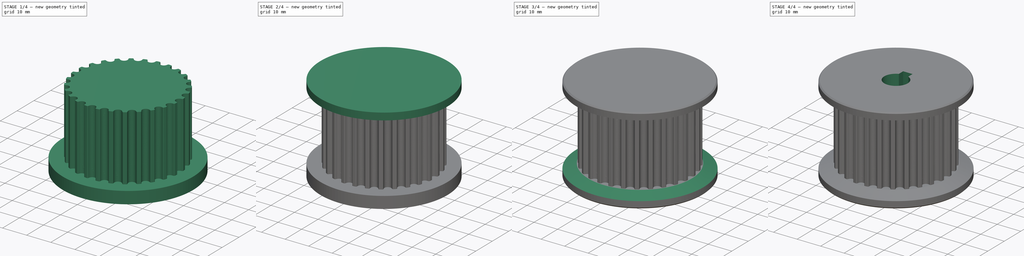
[diagram: build sequence overview — one tinted view per stage of 4, left to right]
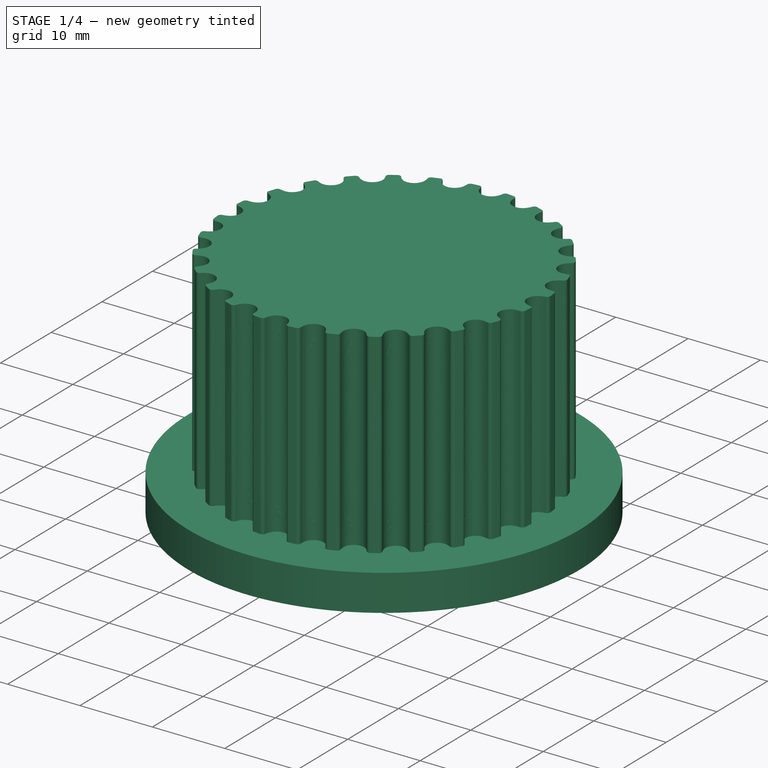
[diagram: stage 1 of 4 — iso view after this stage's code; geometry added in this stage tinted green]
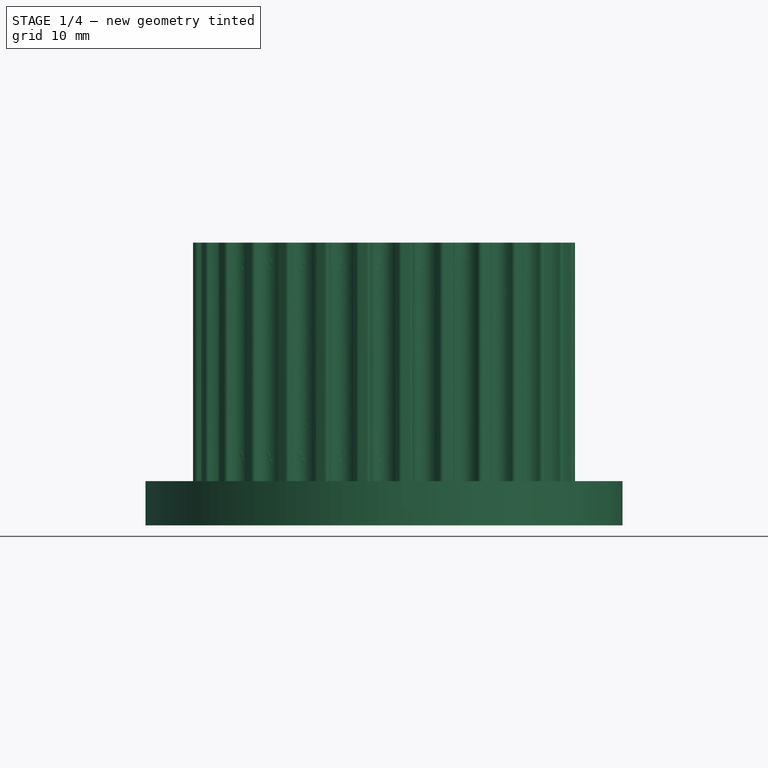
[diagram: stage 1 of 4 — front view after this stage's code; geometry added in this stage tinted green]
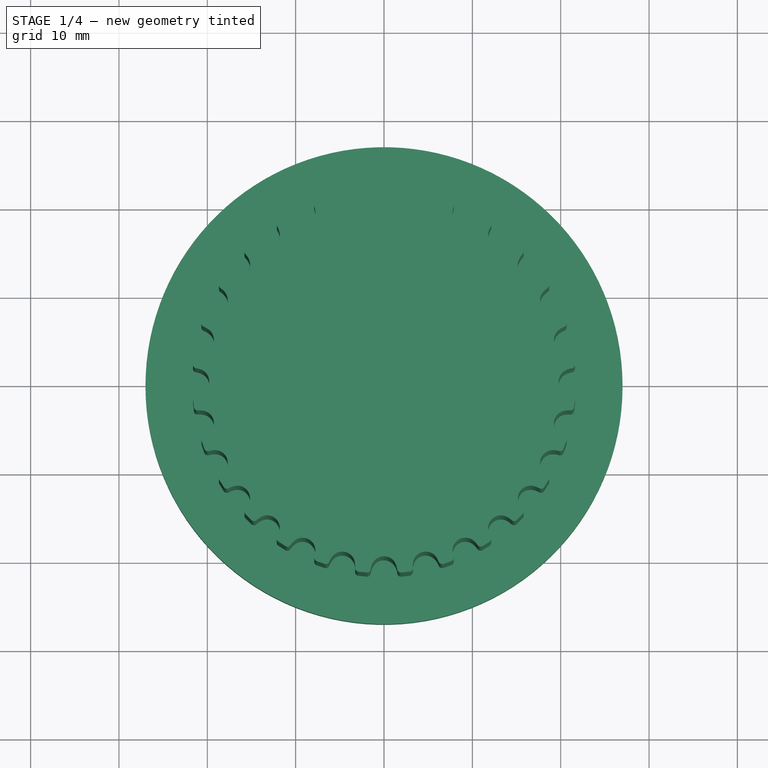
[diagram: stage 1 of 4 — top view after this stage's code; geometry added in this stage tinted green]
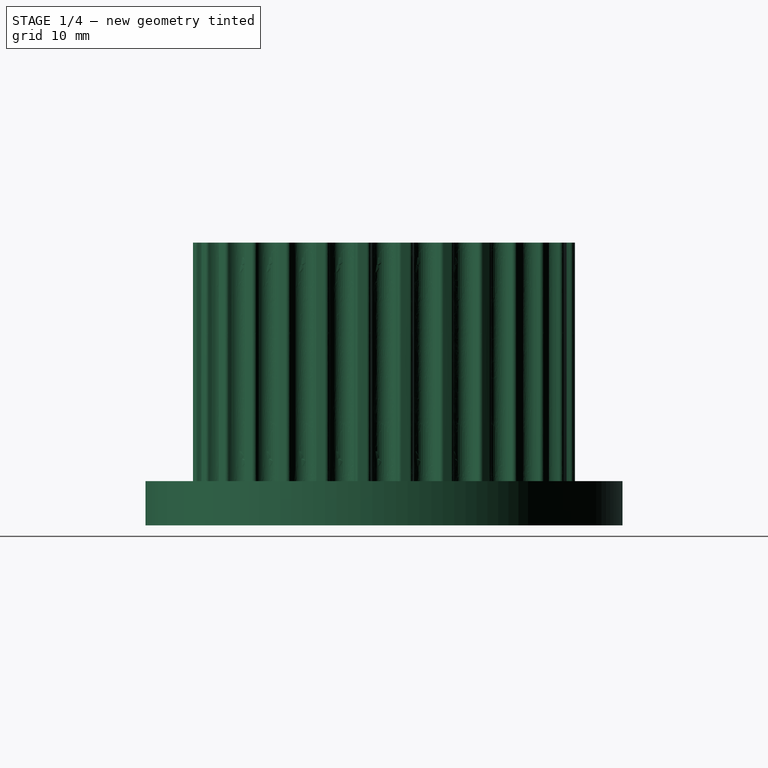
[diagram: stage 1 of 4 — right view after this stage's code; geometry added in this stage tinted green]
FCSTD DOCUMENT  (FreeCAD 0.20R29177 +426 (Git))
Label: Pitch_Motor_Pulley
License: All rights reserved
LicenseURL: http://en.wikipedia.org/wiki/All_rights_reserved
objects: Sketcher::SketchObject×4, PartDesign::Chamfer×4, PartDesign::Pad×2, PartDesign::Pocket×2, PartDesign::FeaturePython×1, PartDesign::Body×1, App::Part×1
note: 22 computed .brp shape members not serialized (recipe doc carries the construction recipe); baked Part::Feature solids carry a one-line shape summary decoded from their .brp

FEATURE [Sketcher::SketchObject] Sketch120
  AttachmentOffset = pos=(0,0,32) rot=(0,0,1;0rad)
  FullyConstrained = true
  MapMode = 5
  Placement = pos=(0,0,32) rot=(0,0,1;0rad)
  Support = -> [XY_Plane041]
  sketch-geometry (4):
    g0: ArcOfCircle CenterX=0 CenterY=0 CenterZ=0 NormalX=0 NormalY=0 NormalZ=1 AngleXU=0 Radius=5 StartAngle=1.98231 EndAngle=7.44246
    g1: LineSegment StartX=-2 StartY=7.2 StartZ=0 EndX=2 EndY=7.2 EndZ=0
    g2: LineSegment StartX=2 StartY=7.2 StartZ=0 EndX=2 EndY=4.58258 EndZ=0
    g3: LineSegment StartX=-2 StartY=4.58258 StartZ=0 EndX=-2 EndY=7.2 EndZ=0
  constraints (11):
    c: Coincident(g0,g-1)
    c: Diameter(g0) = 10
    c: Coincident(g1,g2)
    c: Coincident(g3,g1)
    c: Vertical(g2)
    c: Vertical(g3)
    c: Distance(g1) = 4
    c: Coincident(g2,g0)
    c: Coincident(g3,g0)
    c: Symmetric(g1,g1,g-2)
    c: DistanceY(g0,g1) = 7.2
FEATURE [Sketcher::SketchObject] Sketch121
  AttachmentOffset = pos=(0,0,-5) rot=(0,0,1;0rad)
  FullyConstrained = true
  MapMode = 5
  Placement = pos=(0,0,-5) rot=(0,0,1;0rad)
  Support = -> [XY_Plane041]
  sketch-geometry (1):
    g0: Circle CenterX=0 CenterY=0 CenterZ=0 NormalX=0 NormalY=0 NormalZ=1 AngleXU=0 Radius=2.05
  constraints (2):
    c: Coincident(g0,g-1)
    c: Diameter(g0) = 4.1
FEATURE [PartDesign::FeaturePython] TimingGear006  # WARN: FeaturePython — macro-defined, semantics opaque (R4)
  AttacherType = Attacher::AttachEngine3D
  h = 1.93
  height = 27
  offset = 1.03
  pitch = 5
  r0 = 1.44
  r1 = 2.57
  rs = 0.416
  teeth = 28
  type = 2
  u = 0.5715
  version = 0.0.4
FEATURE [Sketcher::SketchObject] Sketch
  FullyConstrained = true
  MapMode = 5
  Support = -> [XY_Plane041]
  sketch-geometry (1):
    g0: Circle CenterX=0 CenterY=0 CenterZ=0 NormalX=0 NormalY=0 NormalZ=1 AngleXU=0 Radius=27
  constraints (2):
    c: Coincident(g0,g-1)
    c: Diameter(g0) = 54
FEATURE [Sketcher::SketchObject] Sketch122
  AttachmentOffset = pos=(0,0,27) rot=(0,0,1;0rad)
  FullyConstrained = true
  MapMode = 5
  Placement = pos=(0,0,27) rot=(0,0,1;0rad)
  Support = -> [XY_Plane041]
  sketch-geometry (1):
    g0: Circle CenterX=0 CenterY=0 CenterZ=0 NormalX=0 NormalY=0 NormalZ=1 AngleXU=0 Radius=27
  constraints (2):
    c: Coincident(g0,g-1)
    c: Diameter(g0) = 54
FEATURE [PartDesign::Pad] Pad
  BaseFeature = -> TimingGear006
  Direction = (0,0,1)
  Length = 5
  Length2 = 10
  Profile = -> Sketch
  ReferenceAxis = -> Sketch [N_Axis]
  Reversed = true
  Type = 0
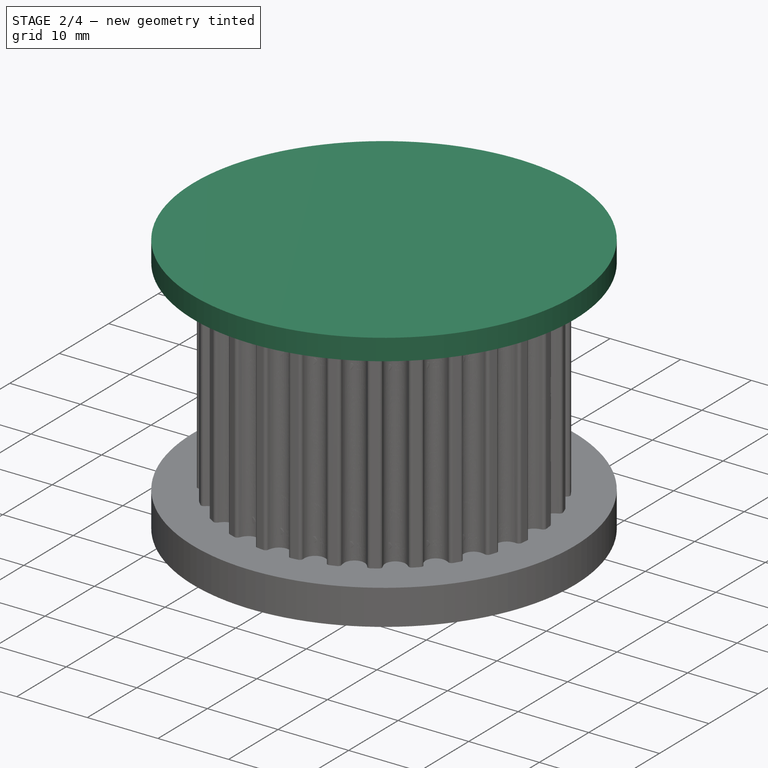
[diagram: stage 2 of 4 — iso view after this stage's code; geometry added in this stage tinted green]
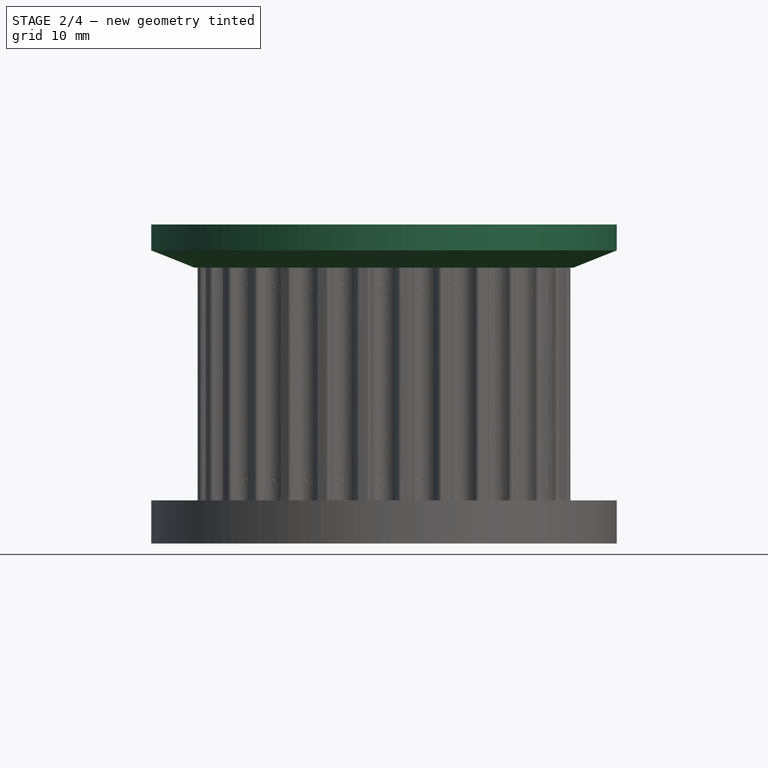
[diagram: stage 2 of 4 — front view after this stage's code; geometry added in this stage tinted green]
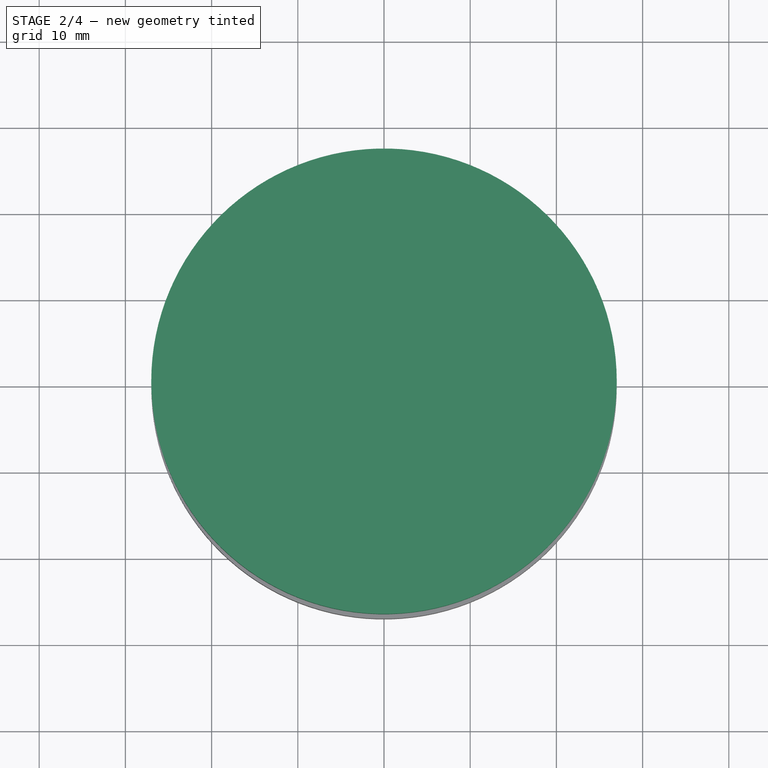
[diagram: stage 2 of 4 — top view after this stage's code; geometry added in this stage tinted green]
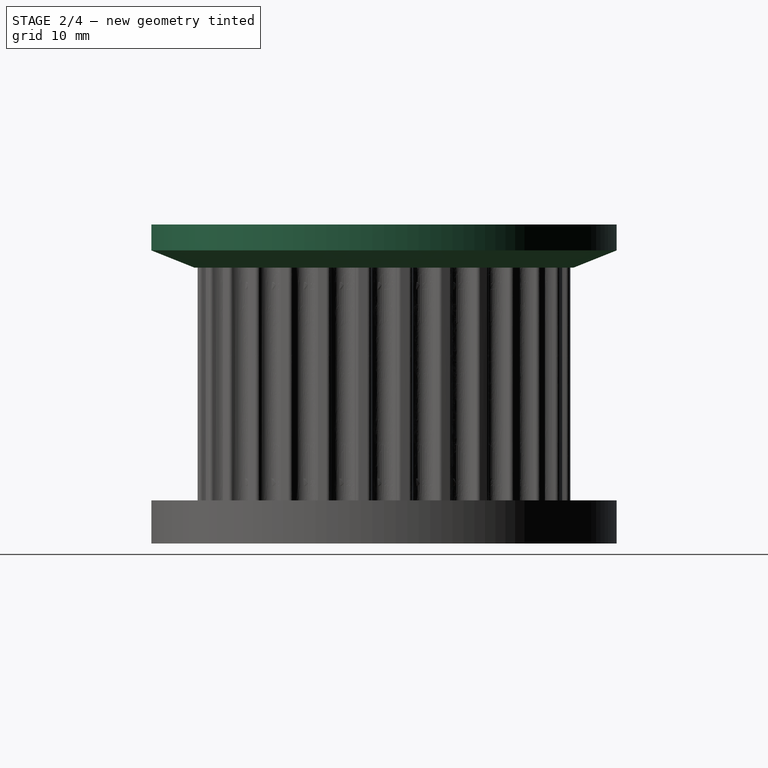
[diagram: stage 2 of 4 — right view after this stage's code; geometry added in this stage tinted green]
FEATURE [PartDesign::Pad] Pad001
  BaseFeature = -> Pad
  Direction = (0,0,1)
  Length = 5
  Length2 = 10
  Profile = -> Sketch122
  ReferenceAxis = -> Sketch122 [N_Axis]
  Type = 0
FEATURE [PartDesign::Chamfer] Chamfer
  Angle = 45
  Base = -> Pad001 [Edge2]
  BaseFeature = -> Pad001
  ChamferType = 1
  FlipDirection = false
  Size = 2
  Size2 = 5
  SupportTransform = false
  UseAllEdges = false
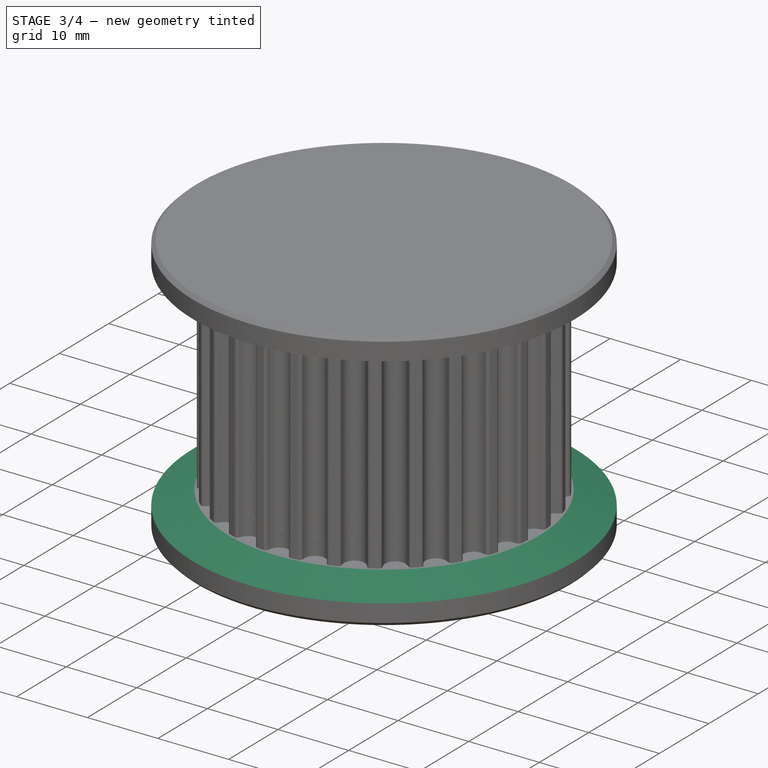
[diagram: stage 3 of 4 — iso view after this stage's code; geometry added in this stage tinted green]
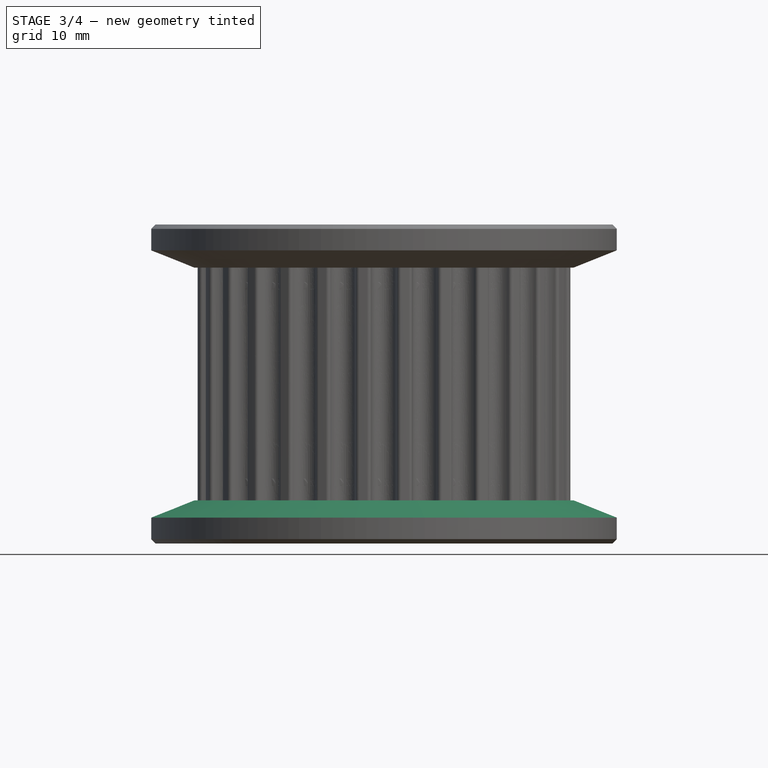
[diagram: stage 3 of 4 — front view after this stage's code; geometry added in this stage tinted green]
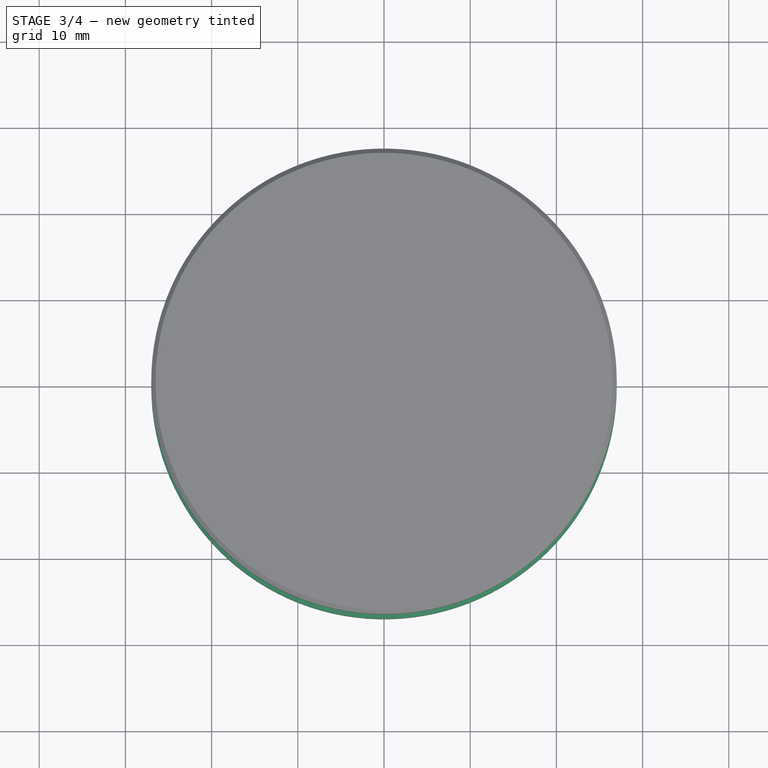
[diagram: stage 3 of 4 — top view after this stage's code; geometry added in this stage tinted green]
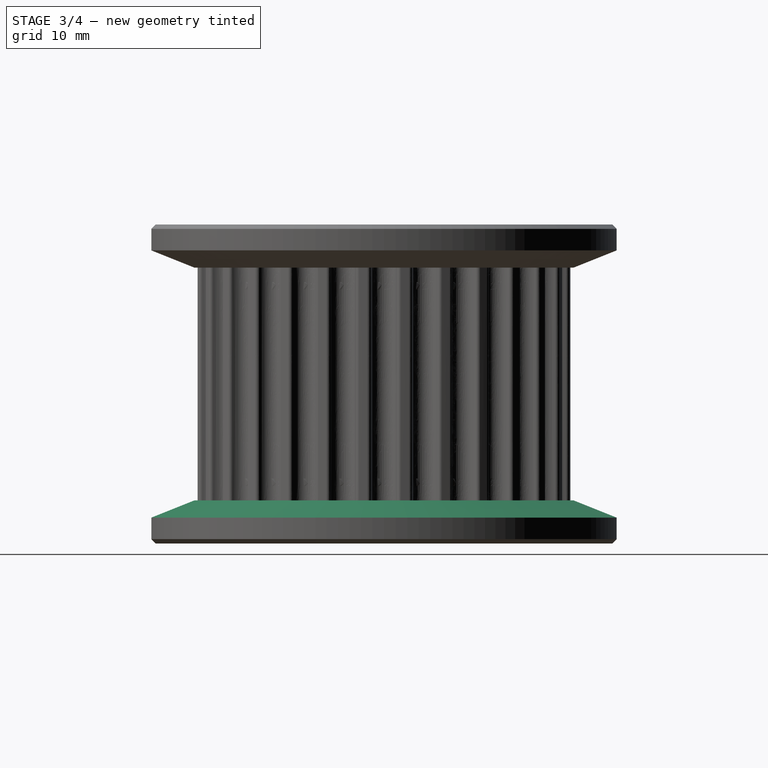
[diagram: stage 3 of 4 — right view after this stage's code; geometry added in this stage tinted green]
FEATURE [PartDesign::Chamfer] Chamfer001
  Angle = 45
  Base = -> Chamfer [Edge510]
  BaseFeature = -> Chamfer
  ChamferType = 1
  FlipDirection = false
  Size = 5
  Size2 = 2
  SupportTransform = false
  UseAllEdges = false
FEATURE [PartDesign::Chamfer] Chamfer002
  Angle = 45
  Base = -> Chamfer001 [Edge514]
  BaseFeature = -> Chamfer001
  ChamferType = 0
  FlipDirection = false
  Size = 0.5
  Size2 = 1
  SupportTransform = false
  UseAllEdges = false
FEATURE [PartDesign::Chamfer] Chamfer003
  Angle = 45
  Base = -> Chamfer002 [Edge516]
  BaseFeature = -> Chamfer002
  ChamferType = 0
  FlipDirection = false
  Size = 0.5
  Size2 = 1
  SupportTransform = false
  UseAllEdges = false
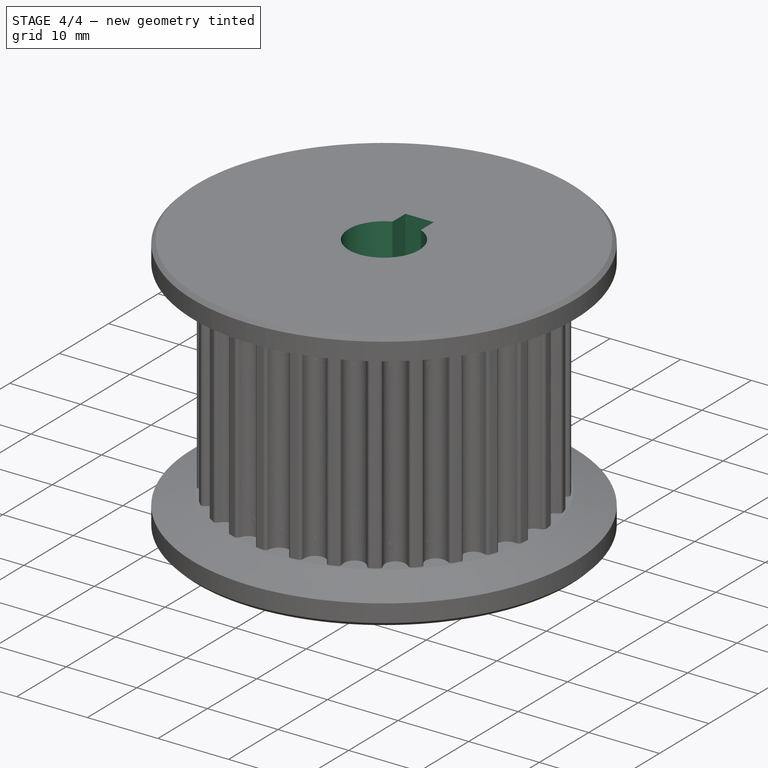
[diagram: stage 4 of 4 — iso view after this stage's code; geometry added in this stage tinted green]
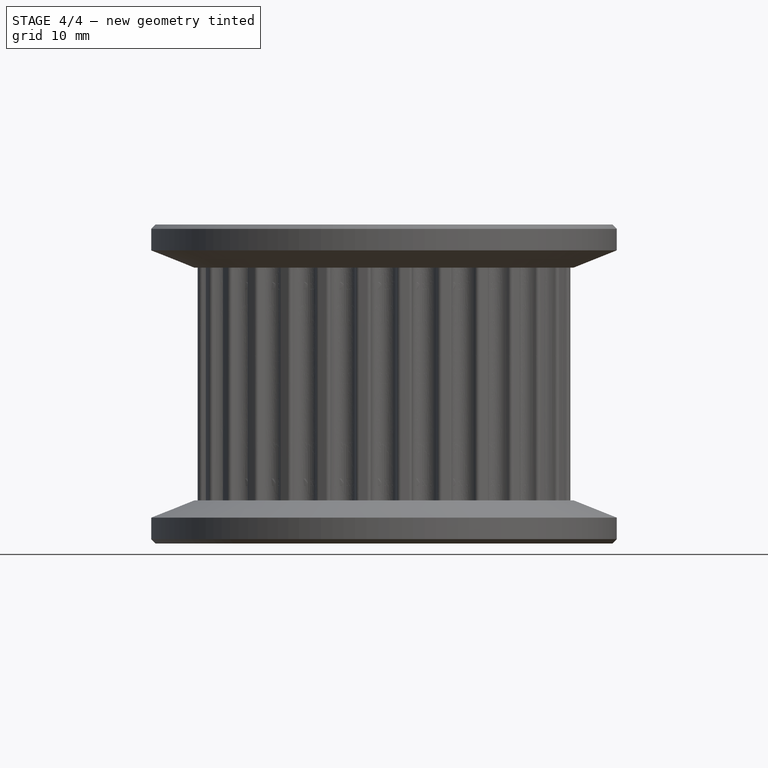
[diagram: stage 4 of 4 — front view after this stage's code; geometry added in this stage tinted green]
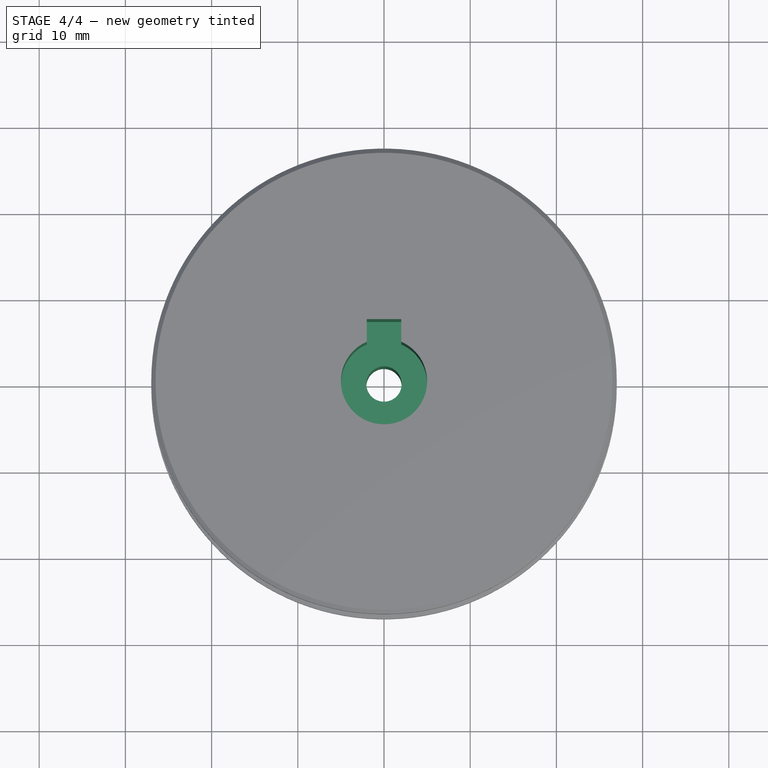
[diagram: stage 4 of 4 — top view after this stage's code; geometry added in this stage tinted green]
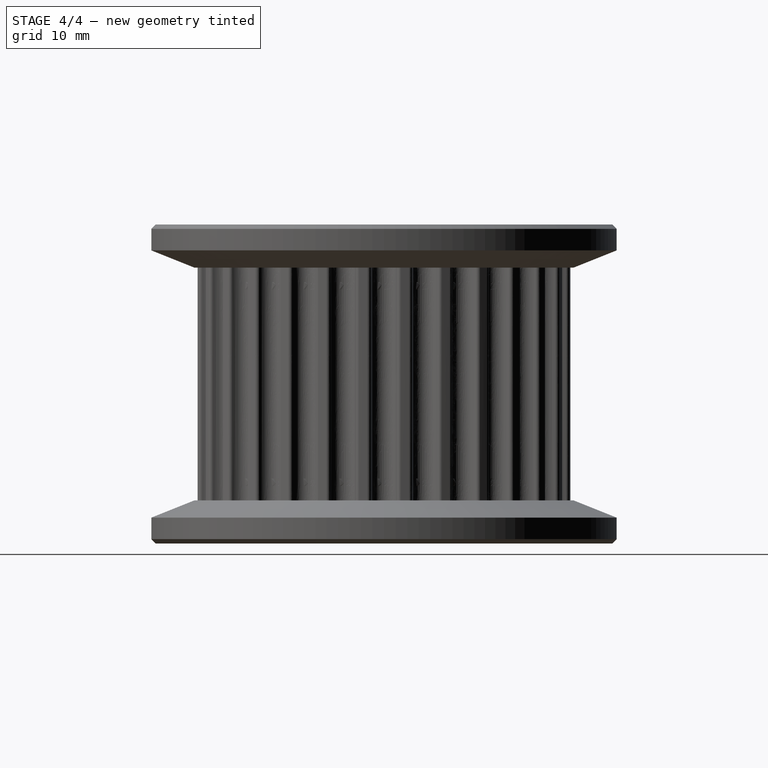
[diagram: stage 4 of 4 — right view after this stage's code; geometry added in this stage tinted green]
FEATURE [PartDesign::Pocket] Pocket043
  BaseFeature = -> Chamfer003
  Direction = (0,0,-1)
  Length = 18.5
  Length2 = 5
  Profile = -> Sketch120
  ReferenceAxis = -> Sketch120 [N_Axis]
  Type = 0
FEATURE [PartDesign::Pocket] Pocket044
  BaseFeature = -> Pocket043
  Direction = (0,0,-1)
  Length = 0
  Length2 = 5
  Profile = -> Sketch121
  ReferenceAxis = -> Sketch121 [N_Axis]
  Reversed = true
  Type = 1
FEATURE [PartDesign::Body] Body025  label="Pitch_Motor_Pulley"
  Group = -> [TimingGear006,Sketch120,Sketch121,Sketch,Sketch122,Pad,Pad001,Chamfer,Chamfer001,Chamfer002,Chamfer003,Pocket043,Pocket044]
  Origin = -> Origin041
  Placement = pos=(-75,-3,-5) rot=(1,0,0;1.5708rad)
  Tip = -> Pocket044
FEATURE [App::Part] Part
  Group = -> [Body025]
  Origin = -> Origin
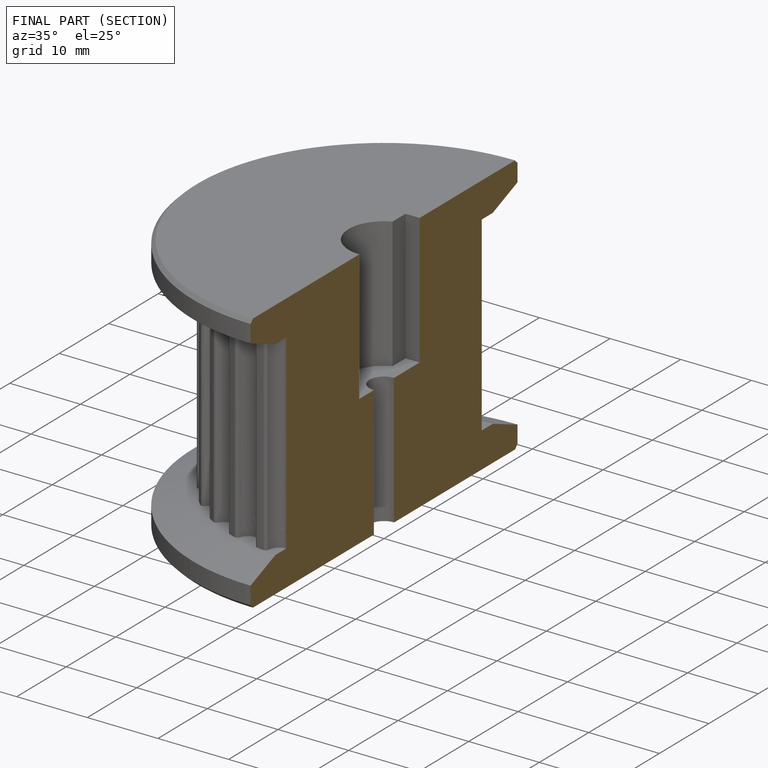
[diagram: finished part — half-section view (interior)]
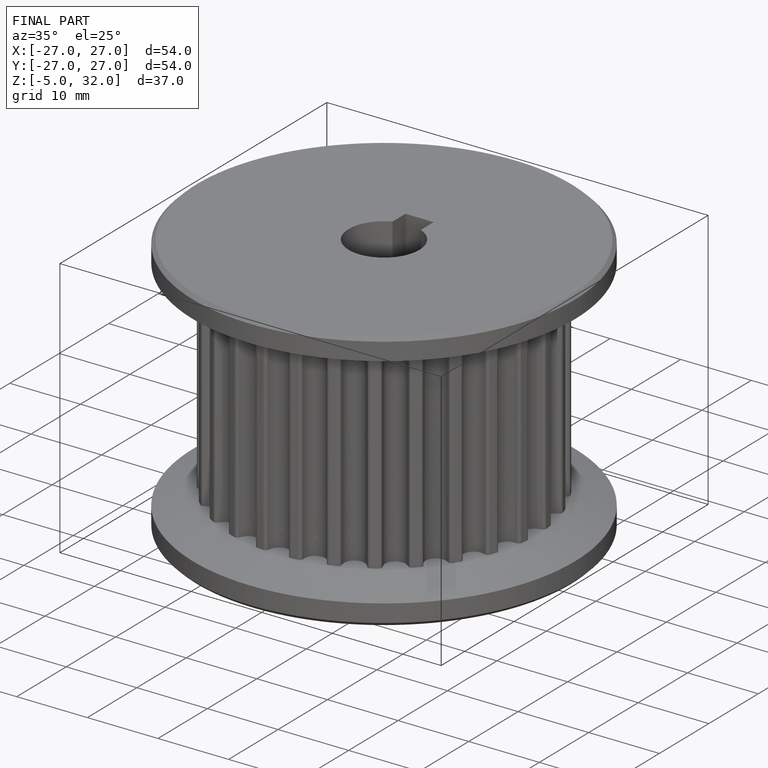
[diagram: finished part — iso view with bounding-box wireframe]
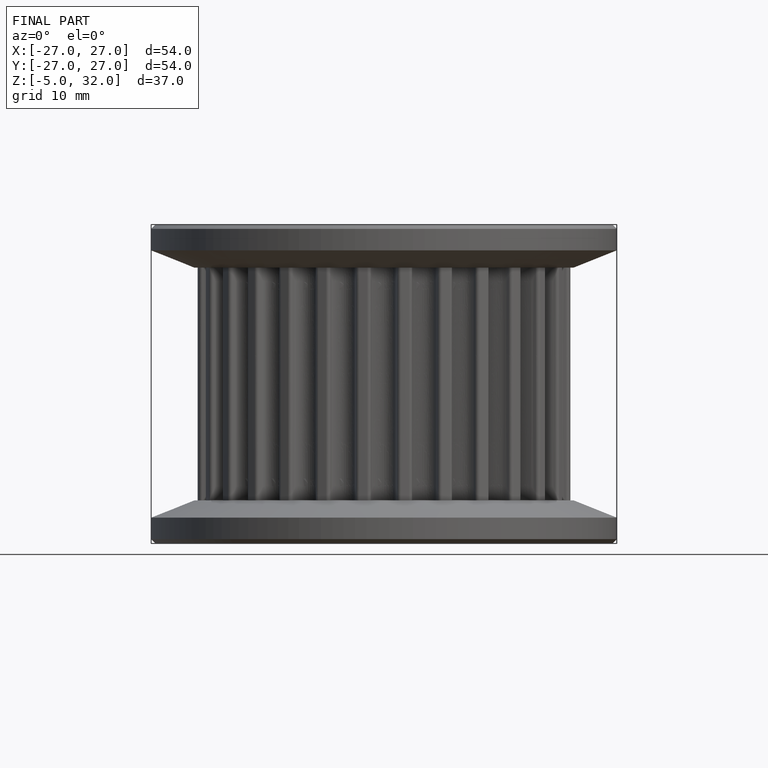
[diagram: finished part — front view with bounding-box wireframe]
